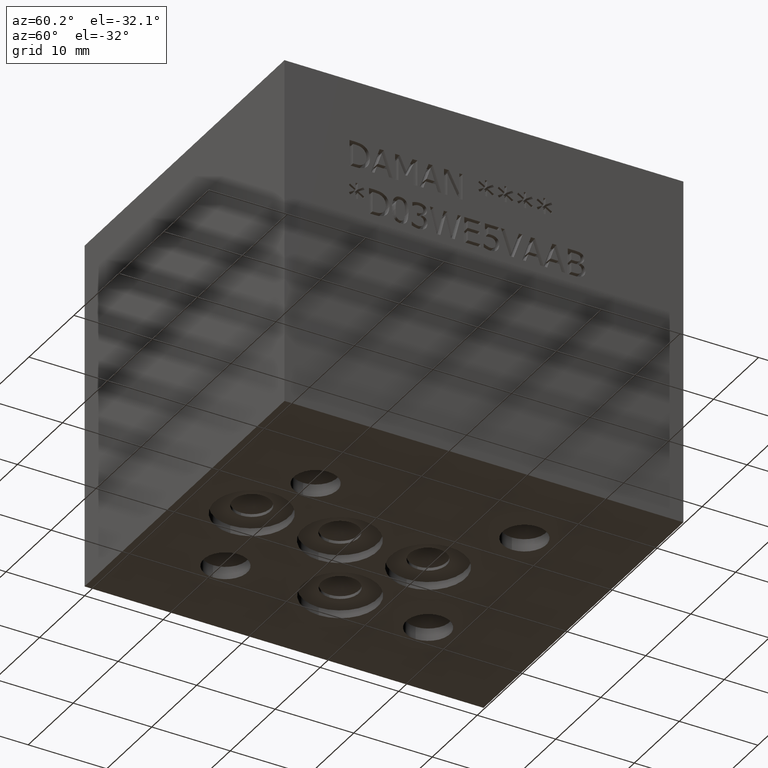
[diagram: clean part render]
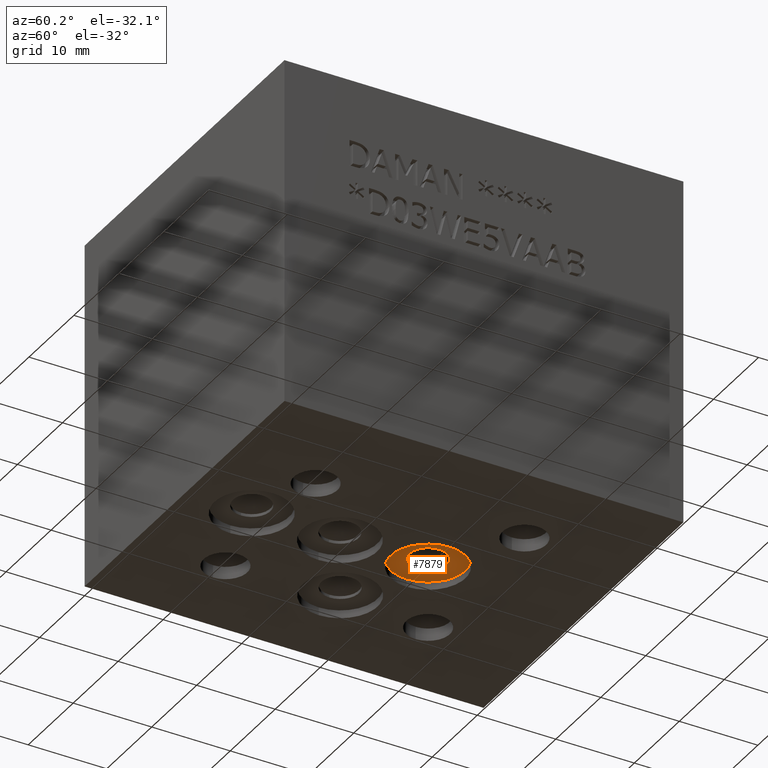
[diagram: same view with one face highlighted and labeled with its STEP entity id]
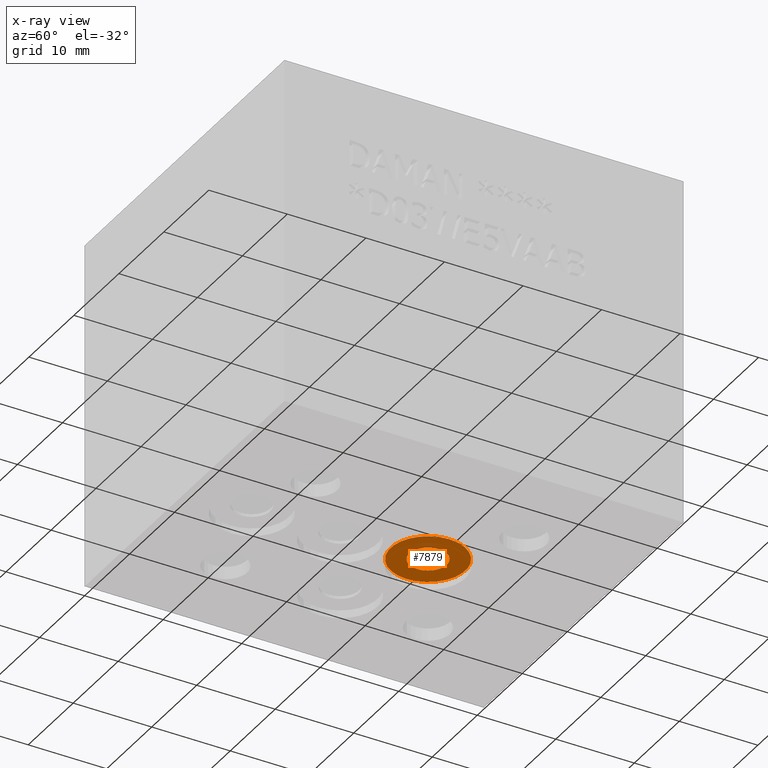
[diagram: x-ray of the same camera — body ghosted, the highlighted face saturated]
A machine part, auxiliary view. The second image highlights one B-rep face of the part: STEP entity #7879.
The next image is the same camera in x-ray: the body ghosted, the highlighted face saturated — about 0% of this face is hidden behind the body in this view.
In plain terms, the highlighted planar face has unit normal (0, 0, -1).
Its self-contained STEP definition (entity closure, byte-faithful):
#42=CIRCLE('',#8225,4.7625);
#43=CIRCLE('',#8226,4.7625);
#44=CIRCLE('',#8228,2.3876);
#215=FACE_BOUND('',#1229,.T.);
#800=FACE_OUTER_BOUND('',#1228,.T.);
#1228=EDGE_LOOP('',(#6601,#6602));
#1229=EDGE_LOOP('',(#6603));
#3569=VERTEX_POINT('',#12920);
#3570=VERTEX_POINT('',#12922);
#3571=VERTEX_POINT('',#12926);
#4617=EDGE_CURVE('',#3570,#3569,#42,.T.);
#4618=EDGE_CURVE('',#3569,#3570,#43,.T.);
#4619=EDGE_CURVE('',#3571,#3571,#44,.T.);
#6601=ORIENTED_EDGE('',*,*,#4617,.T.);
#6602=ORIENTED_EDGE('',*,*,#4618,.T.);
#6603=ORIENTED_EDGE('',*,*,#4619,.F.);
#7213=PLANE('',#8227);
#7879=ADVANCED_FACE('',(#800,#215),#7213,.T.);
#8225=AXIS2_PLACEMENT_3D('',#12923,#9688,#9689);
#8226=AXIS2_PLACEMENT_3D('',#12924,#9690,#9691);
#8227=AXIS2_PLACEMENT_3D('',#12925,#9692,#9693);
#8228=AXIS2_PLACEMENT_3D('',#12927,#9694,#9695);
#9688=DIRECTION('center_axis',(0.,0.,-1.));
#9689=DIRECTION('ref_axis',(1.,0.,0.));
#9690=DIRECTION('center_axis',(0.,0.,-1.));
#9691=DIRECTION('ref_axis',(1.,0.,0.));
#9692=DIRECTION('center_axis',(0.,0.,-1.));
#9693=DIRECTION('ref_axis',(1.,0.,0.));
#9694=DIRECTION('center_axis',(0.,0.,-1.));
#9695=DIRECTION('ref_axis',(1.,0.,0.));
#12920=CARTESIAN_POINT('',(17.6149,30.9245,1.016));
#12922=CARTESIAN_POINT('',(27.1399,30.9245,1.016));
#12923=CARTESIAN_POINT('Origin',(22.3774,30.9245,1.016));
#12924=CARTESIAN_POINT('Origin',(22.3774,30.9245,1.016));
#12925=CARTESIAN_POINT('Origin',(22.3774,30.9245,1.016));
#12926=CARTESIAN_POINT('',(19.9898,30.9245,1.016));
#12927=CARTESIAN_POINT('Origin',(22.3774,30.9245,1.016));